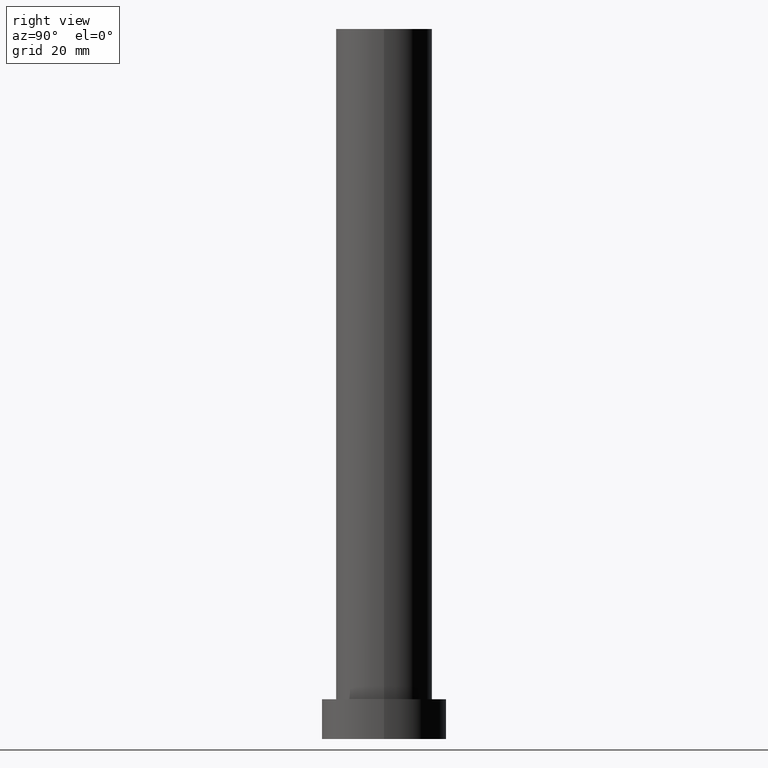
[diagram: clean part render]
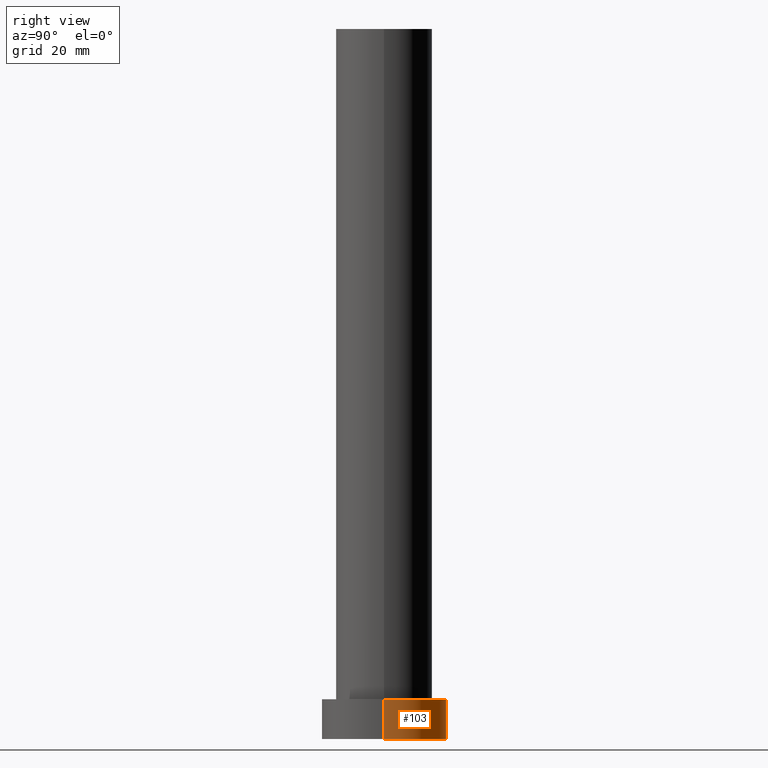
[diagram: same view with one face highlighted and labeled with its STEP entity id]
A machine part, right view. The second image highlights one B-rep face of the part: STEP entity #103.
In plain terms, the highlighted cylindrical surface (partial cylindrical patch) has radius 11 mm, axis along (-0, -0, -1).
Its self-contained STEP definition (entity closure, byte-faithful):
#6 = CARTESIAN_POINT ( 'NONE',  ( 11.00000000000000000, 1.347111479062088405E-15, 7.000000000000000000 ) ) ;
#12 = DIRECTION ( 'NONE',  ( -0.000000000000000000, -0.000000000000000000, -1.000000000000000000 ) ) ;
#15 = VECTOR ( 'NONE', #12, 1000.000000000000000 ) ;
#38 = DIRECTION ( 'NONE',  ( -0.000000000000000000, -0.000000000000000000, -1.000000000000000000 ) ) ;
#39 = LINE ( 'NONE', #243, #15 ) ;
#41 = DIRECTION ( 'NONE',  ( 0.000000000000000000, 0.000000000000000000, 1.000000000000000000 ) ) ;
#61 = CYLINDRICAL_SURFACE ( 'NONE', #81, 11.00000000000000000 ) ;
#64 = CARTESIAN_POINT ( 'NONE',  ( 11.00000000000000000, 1.347111479062088405E-15, 0.000000000000000000 ) ) ;
#69 = AXIS2_PLACEMENT_3D ( 'NONE', #177, #41, #251 ) ;
#70 = VERTEX_POINT ( 'NONE', #240 ) ;
#77 = CIRCLE ( 'NONE', #110, 11.00000000000000000 ) ;
#80 = VERTEX_POINT ( 'NONE', #253 ) ;
#81 = AXIS2_PLACEMENT_3D ( 'NONE', #136, #38, #141 ) ;
#83 = EDGE_CURVE ( 'NONE', #80, #196, #39, .T. ) ;
#98 = VECTOR ( 'NONE', #169, 1000.000000000000000 ) ;
#103 = ADVANCED_FACE ( 'NONE', ( #192 ), #61, .T. ) ;
#110 = AXIS2_PLACEMENT_3D ( 'NONE', #117, #113, #165 ) ;
#113 = DIRECTION ( 'NONE',  ( 0.000000000000000000, 0.000000000000000000, 1.000000000000000000 ) ) ;
#117 = CARTESIAN_POINT ( 'NONE',  ( 0.000000000000000000, 0.000000000000000000, 0.000000000000000000 ) ) ;
#119 = EDGE_CURVE ( 'NONE', #70, #80, #128, .T. ) ;
#123 = ORIENTED_EDGE ( 'NONE', *, *, #166, .T. ) ;
#128 = CIRCLE ( 'NONE', #69, 11.00000000000000000 ) ;
#136 = CARTESIAN_POINT ( 'NONE',  ( 0.000000000000000000, 0.000000000000000000, 7.000000000000000000 ) ) ;
#141 = DIRECTION ( 'NONE',  ( -1.000000000000000000, 0.000000000000000000, 0.000000000000000000 ) ) ;
#146 = LINE ( 'NONE', #6, #98 ) ;
#151 = EDGE_CURVE ( 'NONE', #160, #196, #77, .T. ) ;
#160 = VERTEX_POINT ( 'NONE', #64 ) ;
#165 = DIRECTION ( 'NONE',  ( 1.000000000000000000, 0.000000000000000000, 0.000000000000000000 ) ) ;
#166 = EDGE_CURVE ( 'NONE', #70, #160, #146, .T. ) ;
#169 = DIRECTION ( 'NONE',  ( -0.000000000000000000, -0.000000000000000000, -1.000000000000000000 ) ) ;
#173 = EDGE_LOOP ( 'NONE', ( #222, #123, #178, #191 ) ) ;
#177 = CARTESIAN_POINT ( 'NONE',  ( 0.000000000000000000, 0.000000000000000000, 7.000000000000000000 ) ) ;
#178 = ORIENTED_EDGE ( 'NONE', *, *, #151, .T. ) ;
#191 = ORIENTED_EDGE ( 'NONE', *, *, #83, .F. ) ;
#192 = FACE_OUTER_BOUND ( 'NONE', #173, .T. ) ;
#196 = VERTEX_POINT ( 'NONE', #205 ) ;
#205 = CARTESIAN_POINT ( 'NONE',  ( -11.00000000000000000, 0.000000000000000000, 0.000000000000000000 ) ) ;
#222 = ORIENTED_EDGE ( 'NONE', *, *, #119, .F. ) ;
#240 = CARTESIAN_POINT ( 'NONE',  ( 11.00000000000000000, 1.347111479062088405E-15, 7.000000000000000000 ) ) ;
#243 = CARTESIAN_POINT ( 'NONE',  ( -11.00000000000000000, 0.000000000000000000, 7.000000000000000000 ) ) ;
#251 = DIRECTION ( 'NONE',  ( 1.000000000000000000, 0.000000000000000000, 0.000000000000000000 ) ) ;
#253 = CARTESIAN_POINT ( 'NONE',  ( -11.00000000000000000, 0.000000000000000000, 7.000000000000000000 ) ) ;